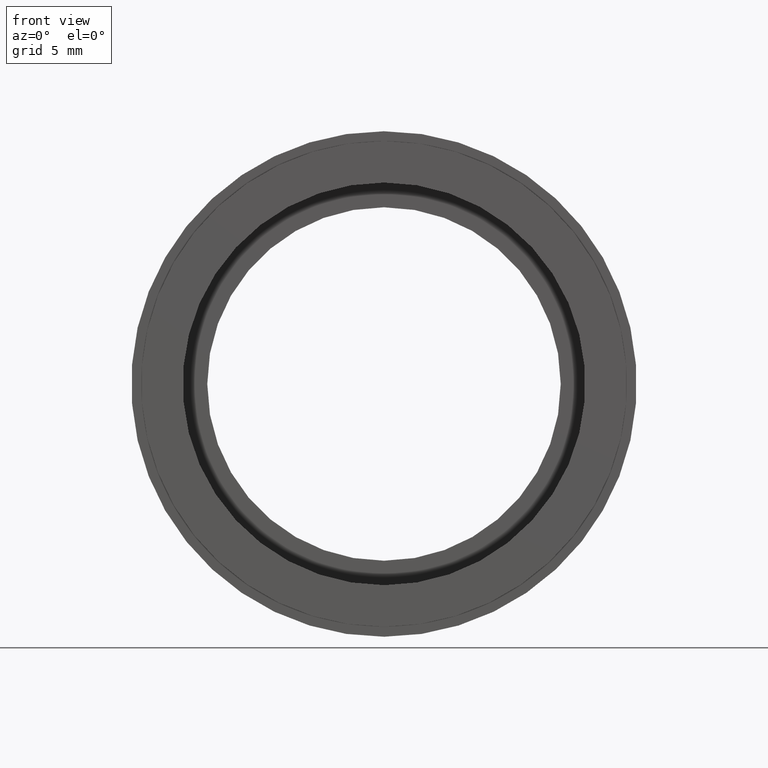
[diagram: clean part render]
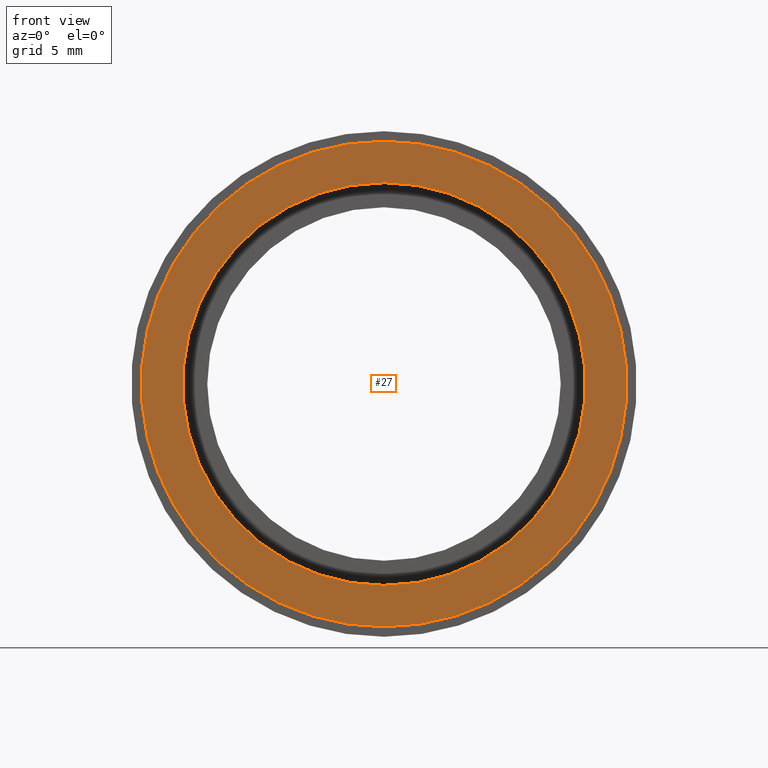
[diagram: same view with one face highlighted and labeled with its STEP entity id]
A machine part, front view. The second image highlights one B-rep face of the part: STEP entity #27.
In plain terms, the highlighted planar face has unit normal (-0, 1, 0).
Its self-contained STEP definition (entity closure, byte-faithful):
#3 = CIRCLE ( 'NONE', #611, 15.25000000000000200 ) ;
#17 = AXIS2_PLACEMENT_3D ( 'NONE', #252, #158, #314 ) ;
#27 = ADVANCED_FACE ( 'NONE', ( #535, #68 ), #173, .F. ) ;
#67 = VERTEX_POINT ( 'NONE', #259 ) ;
#68 = FACE_BOUND ( 'NONE', #441, .T. ) ;
#74 = CARTESIAN_POINT ( 'NONE',  ( 0.0000000000000000000, -1.734723475976807100E-015, 0.0000000000000000000 ) ) ;
#87 = CARTESIAN_POINT ( 'NONE',  ( 0.0000000000000000000, 0.0000000000000000000, 0.0000000000000000000 ) ) ;
#98 = AXIS2_PLACEMENT_3D ( 'NONE', #87, #477, #428 ) ;
#120 = ORIENTED_EDGE ( 'NONE', *, *, #443, .F. ) ;
#138 = ORIENTED_EDGE ( 'NONE', *, *, #467, .F. ) ;
#158 = DIRECTION ( 'NONE',  ( -0.0000000000000000000, 1.000000000000000000, 0.0000000000000000000 ) ) ;
#163 = DIRECTION ( 'NONE',  ( -0.0000000000000000000, 1.000000000000000000, -0.0000000000000000000 ) ) ;
#173 = PLANE ( 'NONE',  #17 ) ;
#207 = CARTESIAN_POINT ( 'NONE',  ( 0.0000000000000000000, 0.0000000000000000000, 0.0000000000000000000 ) ) ;
#225 = DIRECTION ( 'NONE',  ( -0.0000000000000000000, 1.000000000000000000, -0.0000000000000000000 ) ) ;
#252 = CARTESIAN_POINT ( 'NONE',  ( 15.25000000000000200, -1.241947756431454800E-015, 0.0000000000000000000 ) ) ;
#259 = CARTESIAN_POINT ( 'NONE',  ( 0.0000000000000000000, -1.734723475976807100E-015, 12.64500000000000000 ) ) ;
#290 = DIRECTION ( 'NONE',  ( 0.0000000000000000000, 0.0000000000000000000, 1.000000000000000000 ) ) ;
#295 = AXIS2_PLACEMENT_3D ( 'NONE', #74, #225, #534 ) ;
#307 = EDGE_CURVE ( 'NONE', #67, #537, #563, .T. ) ;
#314 = DIRECTION ( 'NONE',  ( 0.0000000000000000000, 0.0000000000000000000, 1.000000000000000000 ) ) ;
#340 = CIRCLE ( 'NONE', #295, 12.64500000000000000 ) ;
#345 = DIRECTION ( 'NONE',  ( -0.0000000000000000000, 1.000000000000000000, -0.0000000000000000000 ) ) ;
#347 = ORIENTED_EDGE ( 'NONE', *, *, #307, .T. ) ;
#355 = AXIS2_PLACEMENT_3D ( 'NONE', #508, #163, #457 ) ;
#364 = EDGE_LOOP ( 'NONE', ( #138, #120 ) ) ;
#426 = EDGE_CURVE ( 'NONE', #537, #67, #340, .T. ) ;
#428 = DIRECTION ( 'NONE',  ( 0.0000000000000000000, 0.0000000000000000000, 1.000000000000000000 ) ) ;
#441 = EDGE_LOOP ( 'NONE', ( #347, #446 ) ) ;
#443 = EDGE_CURVE ( 'NONE', #560, #595, #499, .T. ) ;
#446 = ORIENTED_EDGE ( 'NONE', *, *, #426, .T. ) ;
#457 = DIRECTION ( 'NONE',  ( 0.0000000000000000000, 0.0000000000000000000, 1.000000000000000000 ) ) ;
#467 = EDGE_CURVE ( 'NONE', #595, #560, #3, .T. ) ;
#475 = CARTESIAN_POINT ( 'NONE',  ( 0.0000000000000000000, 0.0000000000000000000, 15.25000000000000200 ) ) ;
#477 = DIRECTION ( 'NONE',  ( -0.0000000000000000000, 1.000000000000000000, -0.0000000000000000000 ) ) ;
#484 = CARTESIAN_POINT ( 'NONE',  ( 1.867586368699713800E-015, 0.0000000000000000000, -15.25000000000000200 ) ) ;
#499 = CIRCLE ( 'NONE', #98, 15.25000000000000200 ) ;
#508 = CARTESIAN_POINT ( 'NONE',  ( 0.0000000000000000000, -1.734723475976807100E-015, 0.0000000000000000000 ) ) ;
#534 = DIRECTION ( 'NONE',  ( 0.0000000000000000000, 0.0000000000000000000, 1.000000000000000000 ) ) ;
#535 = FACE_OUTER_BOUND ( 'NONE', #364, .T. ) ;
#537 = VERTEX_POINT ( 'NONE', #571 ) ;
#560 = VERTEX_POINT ( 'NONE', #484 ) ;
#563 = CIRCLE ( 'NONE', #355, 12.64500000000000000 ) ;
#571 = CARTESIAN_POINT ( 'NONE',  ( 1.548565877521828200E-015, -1.734723475976807100E-015, -12.64500000000000000 ) ) ;
#595 = VERTEX_POINT ( 'NONE', #475 ) ;
#611 = AXIS2_PLACEMENT_3D ( 'NONE', #207, #345, #290 ) ;